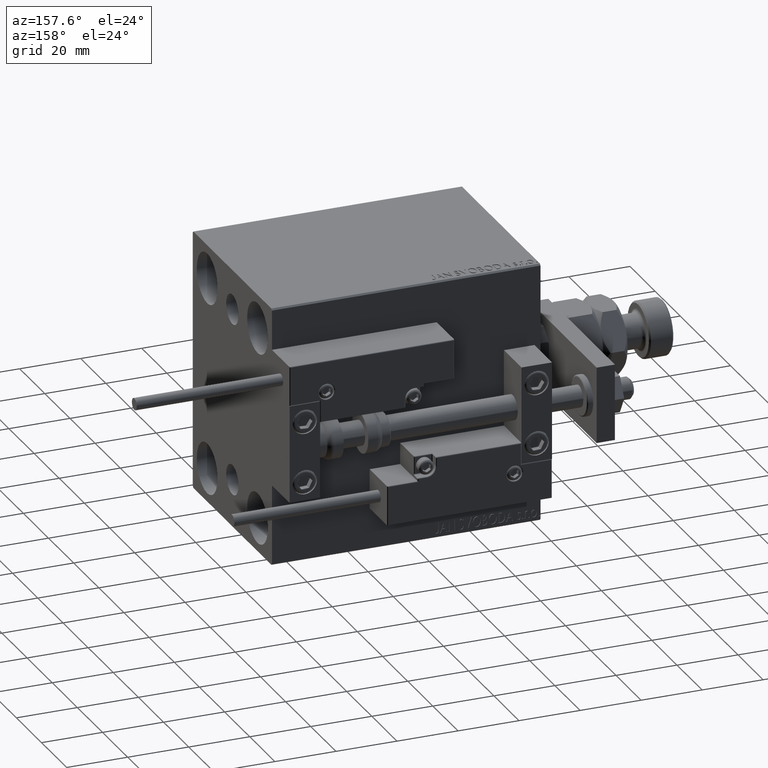
[diagram: clean part render]
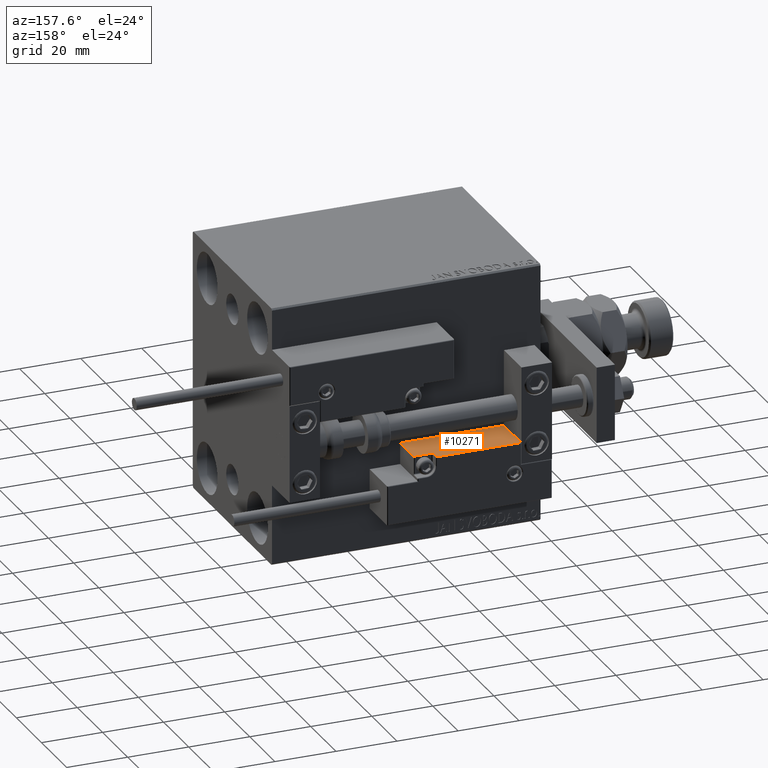
[diagram: same view with one face highlighted and labeled with its STEP entity id]
A machine part, auxiliary view. The second image highlights one B-rep face of the part: STEP entity #10271.
In plain terms, the highlighted planar face has unit normal (-0, -0, -1).
Its self-contained STEP definition (entity closure, byte-faithful):
#61 = EDGE_CURVE ( 'NONE', #28882, #32576, #15345, .T. ) ;
#315 = EDGE_CURVE ( 'NONE', #50721, #32576, #18682, .T. ) ;
#1284 = CARTESIAN_POINT ( 'NONE',  ( 10.70000000000000107, 3.252606517456513302E-15, 14.00000000000000000 ) ) ;
#1623 = EDGE_CURVE ( 'NONE', #6209, #34863, #23022, .T. ) ;
#2296 = VECTOR ( 'NONE', #42823, 1000.000000000000000 ) ;
#3432 = VECTOR ( 'NONE', #11207, 1000.000000000000000 ) ;
#3856 = CARTESIAN_POINT ( 'NONE',  ( 11.00000000000000000, 3.252606517456513302E-15, 10.69999999999999929 ) ) ;
#3987 = CARTESIAN_POINT ( 'NONE',  ( -16.99999999999999289, 3.252606517456513302E-15, 14.00000000000000000 ) ) ;
#4797 = VECTOR ( 'NONE', #50578, 1000.000000000000000 ) ;
#5237 = VERTEX_POINT ( 'NONE', #24801 ) ;
#5564 = ORIENTED_EDGE ( 'NONE', *, *, #1623, .T. ) ;
#6209 = VERTEX_POINT ( 'NONE', #9739 ) ;
#8217 = ORIENTED_EDGE ( 'NONE', *, *, #61, .F. ) ;
#8373 = DIRECTION ( 'NONE',  ( 0.000000000000000000, -0.000000000000000000, 1.000000000000000000 ) ) ;
#9284 = DIRECTION ( 'NONE',  ( -0.000000000000000000, -0.000000000000000000, -1.000000000000000000 ) ) ;
#9739 = CARTESIAN_POINT ( 'NONE',  ( 10.70000000000000107, 3.252606517456513302E-15, 13.70000000000000107 ) ) ;
#10271 = ADVANCED_FACE ( 'NONE', ( #23362 ), #27548, .F. ) ;
#10564 = EDGE_CURVE ( 'NONE', #34572, #6209, #45234, .T. ) ;
#11207 = DIRECTION ( 'NONE',  ( -1.000000000000000000, 0.000000000000000000, -0.000000000000000000 ) ) ;
#13212 = LINE ( 'NONE', #29174, #23404 ) ;
#15345 = LINE ( 'NONE', #38656, #2296 ) ;
#17689 = CARTESIAN_POINT ( 'NONE',  ( 16.99999999999999289, 3.252606517456513302E-15, 0.000000000000000000 ) ) ;
#18682 = LINE ( 'NONE', #34628, #4797 ) ;
#19616 = CARTESIAN_POINT ( 'NONE',  ( -16.99999999999999289, 3.252606517456513302E-15, 13.70000000000000107 ) ) ;
#20507 = EDGE_CURVE ( 'NONE', #28882, #5237, #31073, .T. ) ;
#22630 = ORIENTED_EDGE ( 'NONE', *, *, #43213, .F. ) ;
#23022 = LINE ( 'NONE', #19616, #39124 ) ;
#23362 = FACE_OUTER_BOUND ( 'NONE', #25508, .T. ) ;
#23404 = VECTOR ( 'NONE', #9284, 1000.000000000000000 ) ;
#23531 = CARTESIAN_POINT ( 'NONE',  ( -16.99999999999999289, 3.252606517456513302E-15, 13.70000000000000107 ) ) ;
#23615 = DIRECTION ( 'NONE',  ( 0.000000000000000000, -0.000000000000000000, 1.000000000000000000 ) ) ;
#24801 = CARTESIAN_POINT ( 'NONE',  ( 11.29999999999999893, 3.252606517456513302E-15, 10.69999999999999929 ) ) ;
#25508 = EDGE_LOOP ( 'NONE', ( #8217, #40161, #22630, #39914, #5564, #44240, #30918 ) ) ;
#27548 = PLANE ( 'NONE',  #30563 ) ;
#28021 = CARTESIAN_POINT ( 'NONE',  ( 10.70000000000000107, 3.252606517456513302E-15, 11.29999999999999893 ) ) ;
#28882 = VERTEX_POINT ( 'NONE', #32020 ) ;
#29174 = CARTESIAN_POINT ( 'NONE',  ( -16.99999999999999289, 3.252606517456513302E-15, 14.00000000000000000 ) ) ;
#29869 = DIRECTION ( 'NONE',  ( -0.000000000000000000, -1.000000000000000000, -0.000000000000000000 ) ) ;
#30563 = AXIS2_PLACEMENT_3D ( 'NONE', #3987, #43488, #23615 ) ;
#30918 = ORIENTED_EDGE ( 'NONE', *, *, #315, .T. ) ;
#31073 = LINE ( 'NONE', #3856, #3432 ) ;
#32020 = CARTESIAN_POINT ( 'NONE',  ( 16.99999999999999289, 3.252606517456513302E-15, 10.69999999999999929 ) ) ;
#32576 = VERTEX_POINT ( 'NONE', #17689 ) ;
#34572 = VERTEX_POINT ( 'NONE', #28021 ) ;
#34628 = CARTESIAN_POINT ( 'NONE',  ( -16.99999999999999289, 3.252606517456513302E-15, 0.000000000000000000 ) ) ;
#34863 = VERTEX_POINT ( 'NONE', #23531 ) ;
#37753 = CIRCLE ( 'NONE', #51096, 0.5999999999999998668 ) ;
#38347 = EDGE_CURVE ( 'NONE', #34863, #50721, #13212, .T. ) ;
#38656 = CARTESIAN_POINT ( 'NONE',  ( 16.99999999999999289, 3.252606517456513302E-15, 14.00000000000000000 ) ) ;
#39124 = VECTOR ( 'NONE', #43411, 1000.000000000000000 ) ;
#39914 = ORIENTED_EDGE ( 'NONE', *, *, #10564, .T. ) ;
#40161 = ORIENTED_EDGE ( 'NONE', *, *, #20507, .T. ) ;
#42823 = DIRECTION ( 'NONE',  ( -0.000000000000000000, -0.000000000000000000, -1.000000000000000000 ) ) ;
#43213 = EDGE_CURVE ( 'NONE', #34572, #5237, #37753, .T. ) ;
#43411 = DIRECTION ( 'NONE',  ( -1.000000000000000000, 0.000000000000000000, -0.000000000000000000 ) ) ;
#43488 = DIRECTION ( 'NONE',  ( 0.000000000000000000, 1.000000000000000000, 0.000000000000000000 ) ) ;
#44240 = ORIENTED_EDGE ( 'NONE', *, *, #38347, .T. ) ;
#44762 = VECTOR ( 'NONE', #8373, 1000.000000000000000 ) ;
#45234 = LINE ( 'NONE', #1284, #44762 ) ;
#45833 = DIRECTION ( 'NONE',  ( 0.000000000000000000, 0.000000000000000000, 1.000000000000000000 ) ) ;
#46485 = CARTESIAN_POINT ( 'NONE',  ( -16.99999999999999289, 3.252606517456513302E-15, 0.000000000000000000 ) ) ;
#49753 = CARTESIAN_POINT ( 'NONE',  ( 11.29999999999999893, 3.252606517456513302E-15, 11.29999999999999893 ) ) ;
#50578 = DIRECTION ( 'NONE',  ( 1.000000000000000000, 0.000000000000000000, 0.000000000000000000 ) ) ;
#50721 = VERTEX_POINT ( 'NONE', #46485 ) ;
#51096 = AXIS2_PLACEMENT_3D ( 'NONE', #49753, #29869, #45833 ) ;